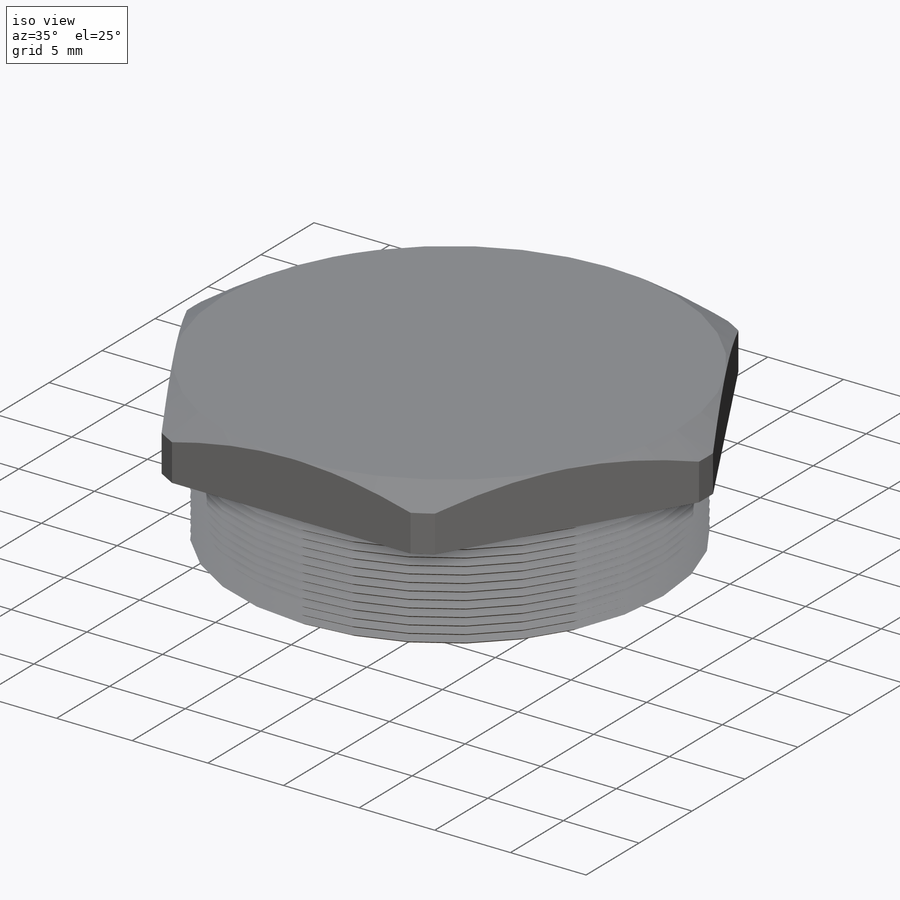
[diagram: iso view]
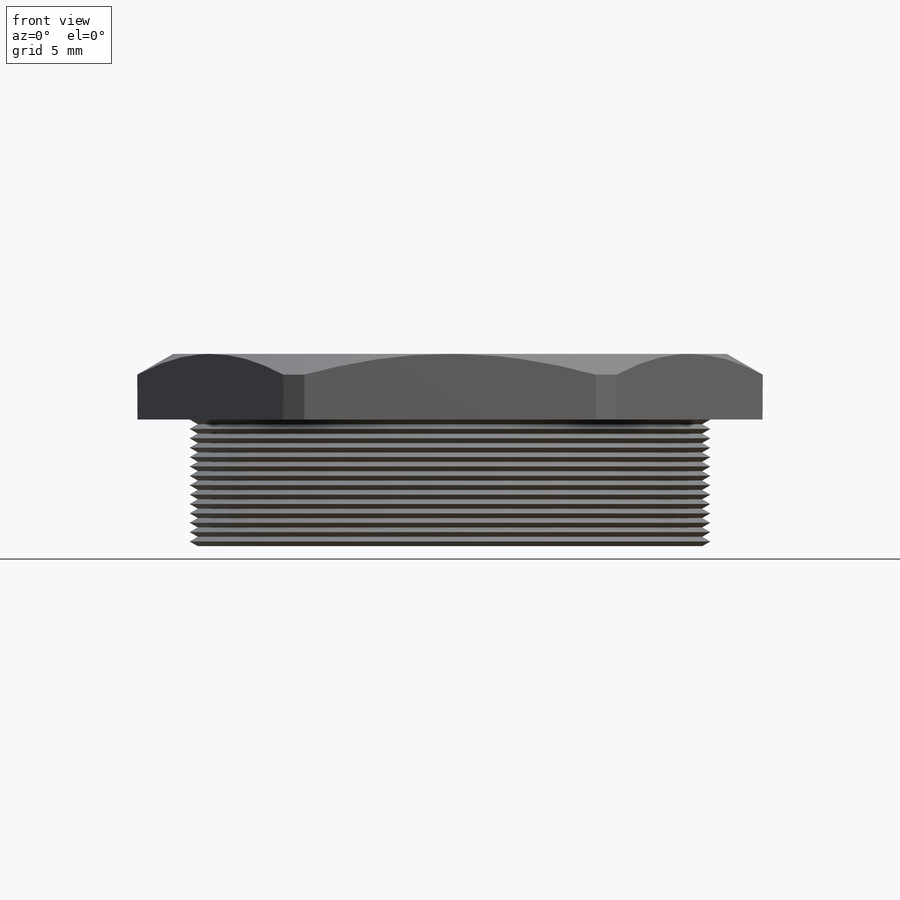
[diagram: front view]
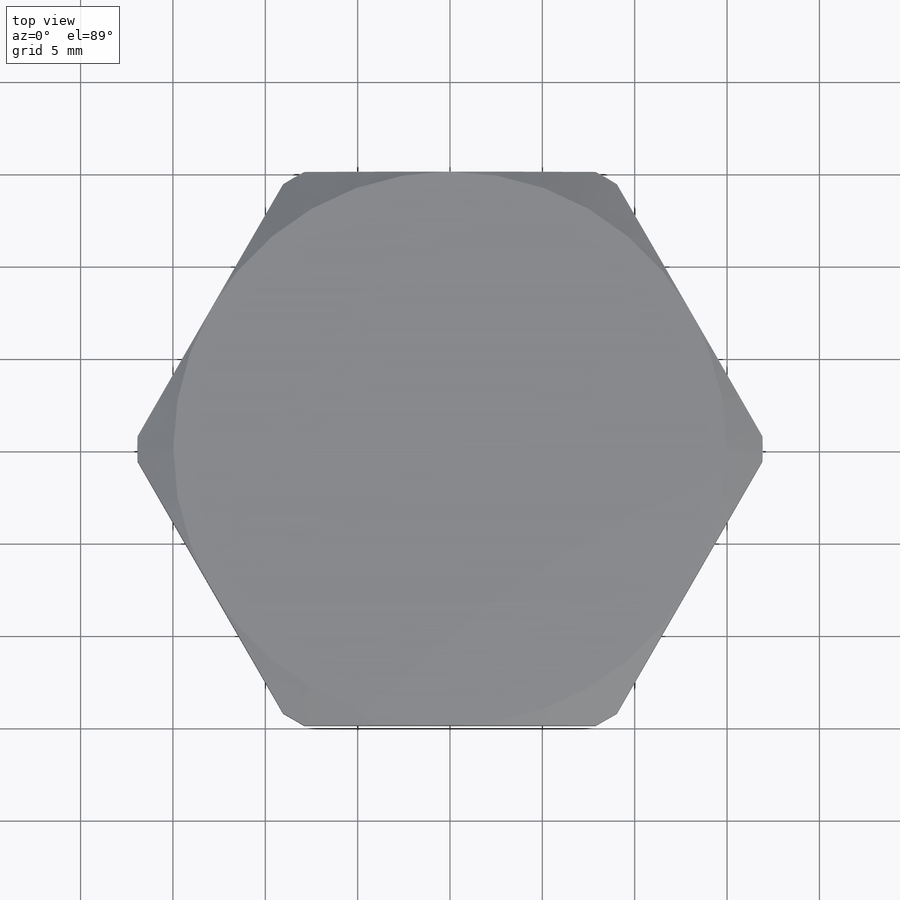
[diagram: top view]
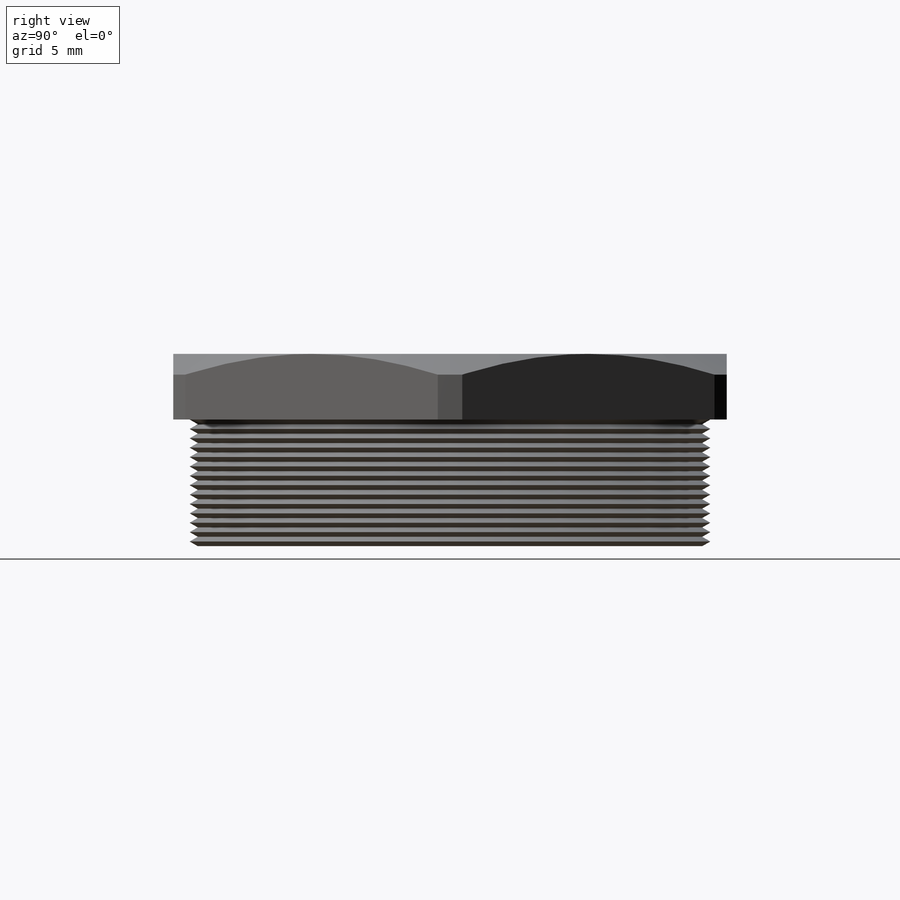
[diagram: right view]
SOLIDWORKS PART (.sldprt)
format: sldprt  version: not decoded by parser v0  size: 278,016 bytes
history: native  units: mm
features: sketch x9, revolve x4, cut_extrude x3, cut_revolve x2, pattern_linear x2, material x1 (+13 scaffold rows collapsed)
feature tree (34):
  scaffold x13  (default folders/planes/origin — collapsed)
  material  "Material <not specified>"
  sketch  "Sketch1"  dims[c1.D1=17.526mm c1.D2=~40.75684mm c1.D3=11.43mm c1.D4=28.194mm c1.D5=~1.433223mm c2.D5=80.0deg c2.D6=~25.269241mm c2.D7=4.699mm c2.D8=~1.301218mm c3.D8=45.0deg c3.D9=~0.703039mm c4.D9=45.0deg c4.D10=11.43mm c4.D11=2.8194mm c4.D12=1.905mm c4.D13=12.5095mm c4.D14=~4.655434mm c4.D15=2.54mm c5.D14=2.54mm c5.D16=~7.448933mm c6.D16=135.0deg c6.D17=~2.105599mm c7.D16=~2.105599mm c7.D8=~5.027389mm c7.D10=~5.027389mm c8.D8=~2.134237mm c9.D8=~56.416932deg c10.D8=1.778mm c11.D8=59.0deg c11.D10=2.8575mm]
  revolve  "Revolve1"  Angle=360deg
  sketch  "Sketch2"  dims[D1=36.068mm]
  cut_extrude  "Cut-Extrude1"  [1 undecoded]
  sketch  "Sketch3"  dims[c1.D1=~0.555979mm c2.D1=60.0deg c2.D2=~0.555979mm c3.D2=30.0deg c4.D2=~0.555979mm c5.D2=60.0deg c5.D3=0.508mm]
  cut_revolve  "Cut-Revolve1"  Angle=360deg
  pattern_linear  "LPattern1"  Count1=23 Count2=1 Spacing1=0.508mm Spacing2=50mm
  sketch  "Sketch5"  dims[c1.D1=7.874mm c1.D2=~38.735829mm c2.D1=10.414mm c2.D2=6.858mm c2.D3=~33.86836mm c2.D4=28.194mm c2.D5=2.54mm]
  revolve  "Revolve2"  Angle=360deg
  sketch  "Sketch6"  dims[c1.D1=~0.467643mm c2.D1=60.0deg c2.D2=~0.467643mm c3.D2=60.0deg c3.D3=0.508mm]
  cut_revolve  "Cut-Revolve2"  Angle=360deg
  pattern_linear  "LPattern2"  Count1=14 Count2=1 Spacing1=0.508mm Spacing2=50mm
  sketch  "Sketch7"  dims[D1=29.972mm]
  cut_extrude  "Cut-Extrude2"  [1 undecoded]
  sketch  "Sketch8"  dims[D1=0.1397mm D2=0.4699mm]
  revolve  "Revolve4"  Angle=360deg
  sketch  "Sketch9"
  cut_extrude  "Cut-Extrude3"  Depth=10mm
  sketch  "Sketch10"  dims[D1=1.4097mm D2=0.4699mm]
  revolve  "Revolve5"  Angle=360deg
decode coverage: 17 of 20 modeling features carry decoded parameters
note: ~ marks probable driven/reference dimensions
note: 2 parameter values undecoded
note: suppression state not decoded; provenance and decode notes live in map.json
